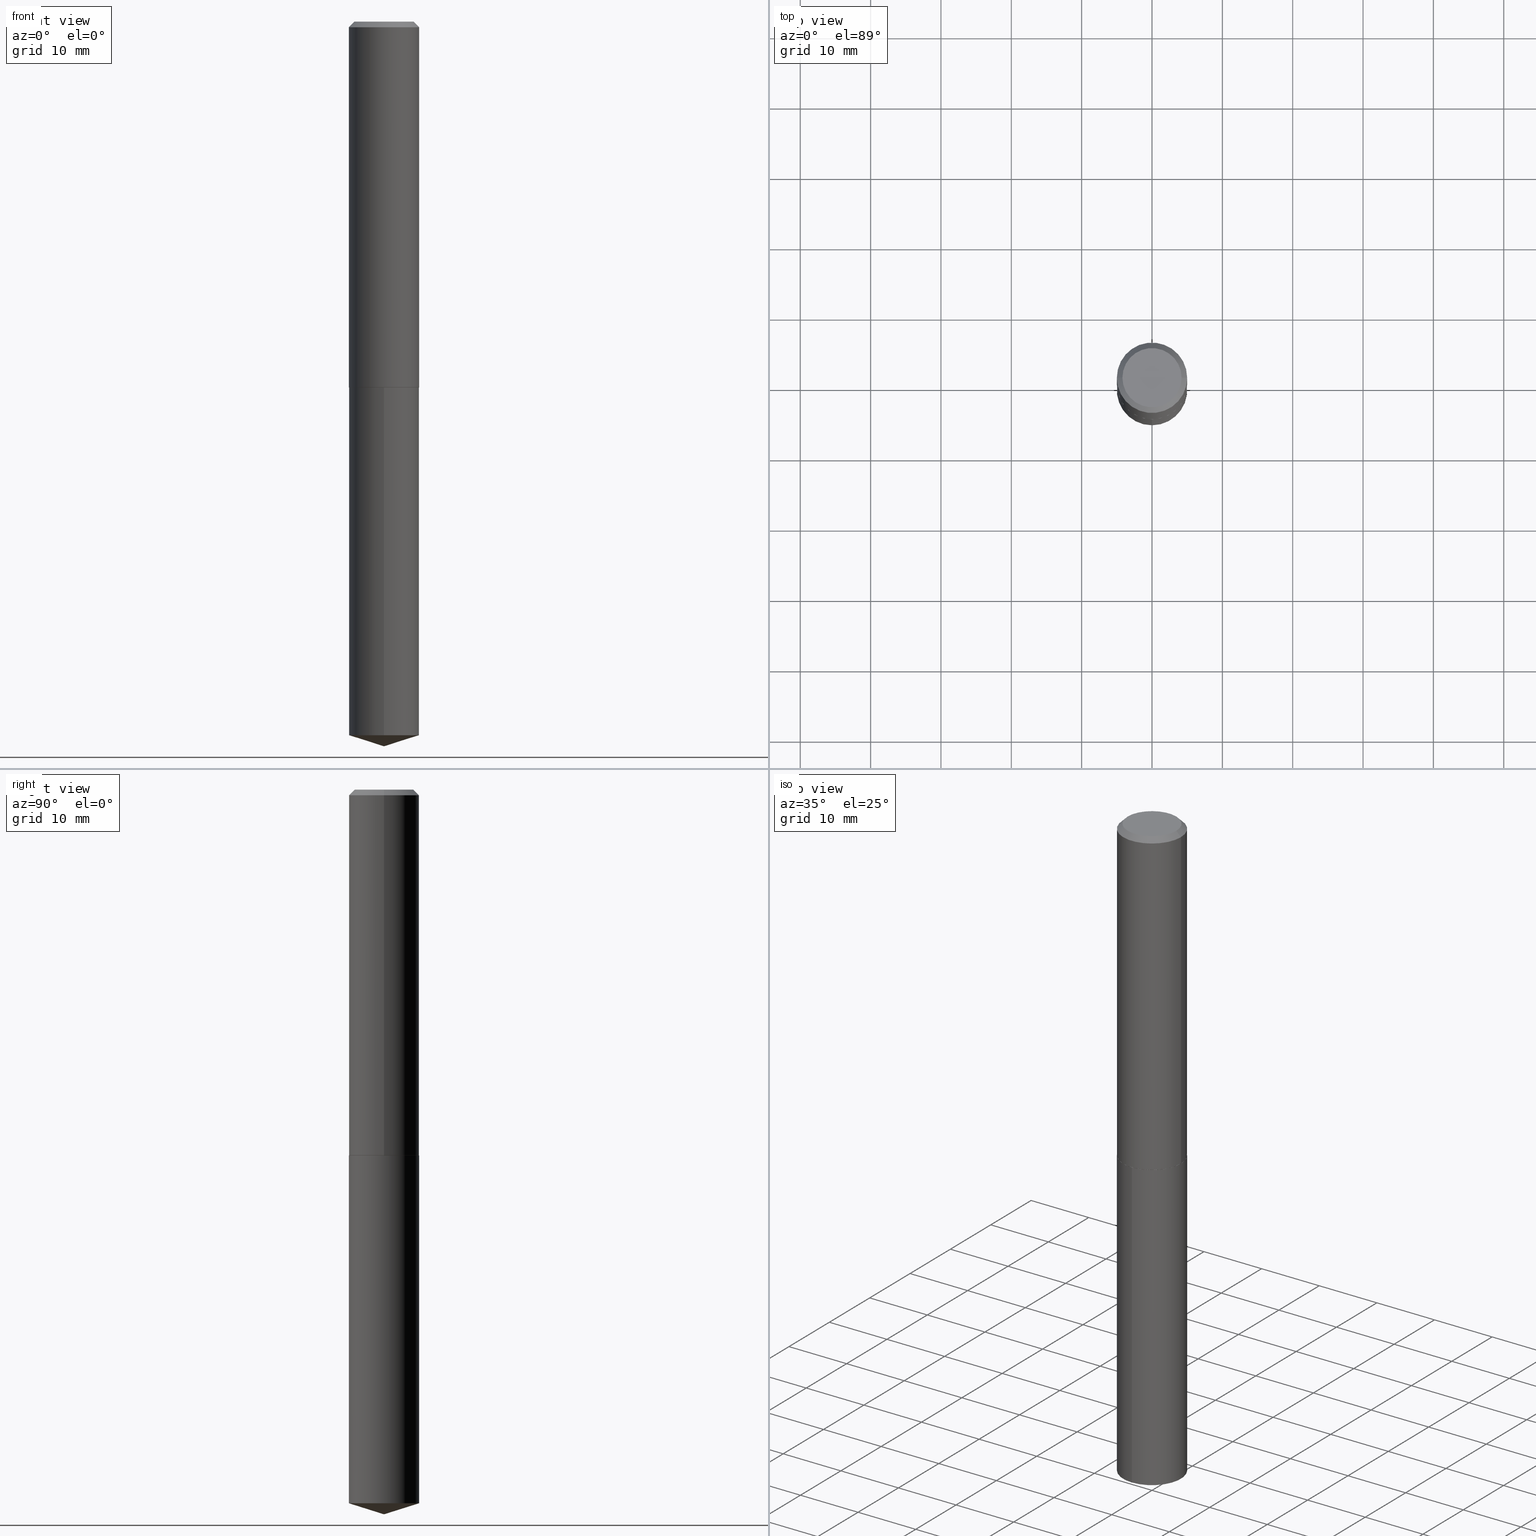
[diagram: canonical four-view strip — front | top / right | iso, engineering-drawing reading convention]
A machine part, canonical four-view strip (front | top / right | iso — engineering-drawing reading convention). The complete STEP part file that produces these views, byte-faithful:
ISO-10303-21;
HEADER;
FILE_DESCRIPTION (( 'STEP AP203' ),
    '1' );
FILE_NAME ('64174.STEP',
    '2024-04-23T10:24:49',
    ( '' ),
    ( '' ),
    'SwSTEP 2.0',
    'SolidWorks 2023',
    '' );
FILE_SCHEMA (( 'CONFIG_CONTROL_DESIGN' ));
ENDSEC;

DATA;
#1 = CARTESIAN_POINT ( 'NONE',  ( 5.006363740022211680E-29, -7.147760596879688202E-15, -2.047200000000000131 ) ) ;
#2 = EDGE_CURVE ( 'NONE', #63, #58, #126, .T. ) ;
#3 = DIRECTION ( 'NONE',  ( 2.445489491733734840E-29, -3.491451715960204306E-15, -1.000000000000000000 ) ) ;
#4 = CONICAL_SURFACE ( 'NONE', #280, 0.1968500000000000250, 0.7853981633974450594 ) ;
#5 = APPROVAL_PERSON_ORGANIZATION ( #177, #41, #297 ) ;
#6 = CARTESIAN_POINT ( 'NONE',  ( 0.1968500000000000250, -1.459597822700175121E-15, -0.03125000000000020123 ) ) ;
#7 = ADVANCED_FACE ( 'NONE', ( #334 ), #351, .T. ) ;
#8 = FACE_OUTER_BOUND ( 'NONE', #365, .T. ) ;
#9 = DIRECTION ( 'NONE',  ( -2.438088387897960049E-29, 3.491481338843145188E-15, 1.000000000000000000 ) ) ;
#10 = AXIS2_PLACEMENT_3D ( 'NONE', #366, #304, #153 ) ;
#11 = LINE ( 'NONE', #346, #59 ) ;
#12 = CARTESIAN_POINT ( 'NONE',  ( 5.006363740022211680E-29, -7.147760596879688202E-15, -2.047200000000000131 ) ) ;
#13 = EDGE_CURVE ( 'NONE', #170, #203, #110, .T. ) ;
#14 = CARTESIAN_POINT ( 'NONE',  ( 1.398703375343854818E-15, 0.1968499999999861194, -3.993033433409173494 ) ) ;
#15 = CLOSED_SHELL ( 'NONE', ( #360, #249, #7, #269, #271, #168, #46, #102 ) ) ;
#16 = AXIS2_PLACEMENT_3D ( 'NONE', #74, #131, #150 ) ;
#17 = DIRECTION ( 'NONE',  ( -2.445489491733734560E-29, 3.491451715960204700E-15, 1.000000000000000000 ) ) ;
#18 = EDGE_LOOP ( 'NONE', ( #350, #264 ) ) ;
#19 = PERSON_AND_ORGANIZATION ( #34, #24 ) ;
#20 = CC_DESIGN_PERSON_AND_ORGANIZATION_ASSIGNMENT ( #306, #211, ( #210 ) ) ;
#21 = DIRECTION ( 'NONE',  ( -2.445468806185136597E-29, 3.491481338843145583E-15, 1.000000000000000000 ) ) ;
#22 = EDGE_LOOP ( 'NONE', ( #386, #359, #164, #292 ) ) ;
#23 = AXIS2_PLACEMENT_3D ( 'NONE', #48, #245, #314 ) ;
#24 = ORGANIZATION ( 'UNSPECIFIED', 'UNSPECIFIED', '' ) ;
#25 = ORIENTED_EDGE ( 'NONE', *, *, #184, .F. ) ;
#26 = ORIENTED_EDGE ( 'NONE', *, *, #378, .F. ) ;
#27 = EDGE_CURVE ( 'NONE', #227, #367, #244, .T. ) ;
#28 = DATE_TIME_ROLE ( 'creation_date' ) ;
#29 = EDGE_LOOP ( 'NONE', ( #33, #288, #384, #261 ) ) ;
#30 = CIRCLE ( 'NONE', #379, 0.1968500000000002470 ) ;
#31 = DIRECTION ( 'NONE',  ( -6.659769872151633666E-15, -0.9537169507482269326, 0.3007057995042729526 ) ) ;
#32 = APPROVAL_DATE_TIME ( #69, #41 ) ;
#33 = ORIENTED_EDGE ( 'NONE', *, *, #339, .F. ) ;
#34 = PERSON ( 'UNSPECIFIED', 'UNSPECIFIED', 'UNSPECIFIED', ('UNSPECIFIED'), ('UNSPECIFIED'), ('UNSPECIFIED') ) ;
#35 = EDGE_CURVE ( 'NONE', #203, #319, #266, .T. ) ;
#36 = DIRECTION ( 'NONE',  ( 2.438088387897960049E-29, -3.491481338843145188E-15, -1.000000000000000000 ) ) ;
#37 = DATE_AND_TIME ( #152, #174 ) ;
#38 = CARTESIAN_POINT ( 'NONE',  ( 9.916619743019288278E-29, -1.415830714132214037E-14, -4.055100000000000371 ) ) ;
#39 = LOCAL_TIME ( 6, 24, 48.00000000000000000, #125 ) ;
#40 = LINE ( 'NONE', #157, #52 ) ;
#41 = APPROVAL ( #204, 'UNSPECIFIED' ) ;
#42 = CARTESIAN_POINT ( 'NONE',  ( 1.398703375343807091E-15, 0.1968499999999928640, -2.047200000000000575 ) ) ;
#43 = LINE ( 'NONE', #109, #154 ) ;
#44 = AXIS2_PLACEMENT_3D ( 'NONE', #247, #312, #195 ) ;
#45 = CC_DESIGN_APPROVAL ( #41, ( #216 ) ) ;
#46 = ADVANCED_FACE ( 'NONE', ( #237 ), #4, .T. ) ;
#47 = DIRECTION ( 'NONE',  ( -2.445489491733734560E-29, 3.491451715960204700E-15, 1.000000000000000000 ) ) ;
#48 = CARTESIAN_POINT ( 'NONE',  ( 0.000000000000000000, 0.000000000000000000, 0.000000000000000000 ) ) ;
#49 = PRODUCT_DEFINITION ( 'UNKNOWN', '', #216, #356 ) ;
#50 = ORIENTED_EDGE ( 'NONE', *, *, #108, .F. ) ;
#51 = EDGE_CURVE ( 'NONE', #58, #172, #316, .T. ) ;
#52 = VECTOR ( 'NONE', #380, 39.37007874015748854 ) ;
#53 = ORIENTED_EDGE ( 'NONE', *, *, #308, .F. ) ;
#54 = ADVANCED_FACE ( 'NONE', ( #98 ), #272, .F. ) ;
#55 = CARTESIAN_POINT ( 'NONE',  ( 7.642090019328601786E-31, -1.091087918388490144E-16, -0.03125000000000020123 ) ) ;
#56 = ORIENTED_EDGE ( 'NONE', *, *, #2, .F. ) ;
#57 = DIRECTION ( 'NONE',  ( 0.000000000000000000, 0.000000000000000000, 1.000000000000000000 ) ) ;
#58 = VERTEX_POINT ( 'NONE', #205 ) ;
#59 = VECTOR ( 'NONE', #318, 39.37007874015748143 ) ;
#60 =( NAMED_UNIT ( * ) SI_UNIT ( $, .STERADIAN. ) SOLID_ANGLE_UNIT ( ) );
#61 = APPROVAL_PERSON_ORGANIZATION ( #95, #341, #185 ) ;
#62 = EDGE_CURVE ( 'NONE', #300, #319, #335, .T. ) ;
#63 = VERTEX_POINT ( 'NONE', #100 ) ;
#64 = COORDINATED_UNIVERSAL_TIME_OFFSET ( 5, 0, .BEHIND. ) ;
#65 = ORIENTED_EDGE ( 'NONE', *, *, #27, .F. ) ;
#66 = PERSON_AND_ORGANIZATION ( #34, #24 ) ;
#67 = DIRECTION ( 'NONE',  ( 2.445468806185136597E-29, -3.491481338843145583E-15, -1.000000000000000000 ) ) ;
#68 = EDGE_CURVE ( 'NONE', #71, #362, #368, .T. ) ;
#69 = DATE_AND_TIME ( #303, #221 ) ;
#70 = AXIS2_PLACEMENT_3D ( 'NONE', #103, #107, #344 ) ;
#71 = VERTEX_POINT ( 'NONE', #186 ) ;
#72 = AXIS2_PLACEMENT_3D ( 'NONE', #286, #17, #324 ) ;
#73 = DIRECTION ( 'NONE',  ( -2.445468806185136597E-29, 3.491481338843145583E-15, 1.000000000000000000 ) ) ;
#74 = CARTESIAN_POINT ( 'NONE',  ( 5.005141005619118879E-29, -7.146014856210265909E-15, -2.046699999999999964 ) ) ;
#75 = DIRECTION ( 'NONE',  ( -2.445489491733734560E-29, 3.491451715960204700E-15, 1.000000000000000000 ) ) ;
#76 = AXIS2_PLACEMENT_3D ( 'NONE', #248, #9, #217 ) ;
#77 = AXIS2_PLACEMENT_3D ( 'NONE', #222, #322, #141 ) ;
#78 = DIRECTION ( 'NONE',  ( -6.982962677686266711E-15, -1.000000000000000000, 3.500519750498693388E-15 ) ) ;
#79 = FACE_OUTER_BOUND ( 'NONE', #213, .T. ) ;
#80 = CARTESIAN_POINT ( 'NONE',  ( -1.374596203102491516E-15, -0.1968500000000071581, -2.047199999999999243 ) ) ;
#81 = LOCAL_TIME ( 6, 24, 48.00000000000000000, #265 ) ;
#82 = DIRECTION ( 'NONE',  ( 6.776566513254258926E-15, 0.9537169507482290420, 0.3007057995042663467 ) ) ;
#83 = ADVANCED_BREP_SHAPE_REPRESENTATION ( '64174', ( #225, #114, #252 ), #389 ) ;
#84 = DIRECTION ( 'NONE',  ( -2.445489491733734560E-29, 3.491451715960204700E-15, 1.000000000000000000 ) ) ;
#85 = ORIENTED_EDGE ( 'NONE', *, *, #284, .F. ) ;
#86 = AXIS2_PLACEMENT_3D ( 'NONE', #257, #231, #352 ) ;
#87 = APPROVAL_ROLE ( '' ) ;
#88 = ORIENTED_EDGE ( 'NONE', *, *, #51, .T. ) ;
#89 = ORIENTED_EDGE ( 'NONE', *, *, #313, .F. ) ;
#90 = PRODUCT_DEFINITION_SHAPE ( 'NONE', 'NONE',  #49 ) ;
#91 = CARTESIAN_POINT ( 'NONE',  ( 7.642090019328601786E-31, -1.091087918388490144E-16, -0.03125000000000020123 ) ) ;
#92 = CONICAL_SURFACE ( 'NONE', #44, 124.8659371009154597, 1.265363707695892570 ) ;
#93 = CC_DESIGN_SECURITY_CLASSIFICATION ( #210, ( #216 ) ) ;
#94 = ORIENTED_EDGE ( 'NONE', *, *, #123, .F. ) ;
#95 = PERSON_AND_ORGANIZATION ( #34, #24 ) ;
#96 = ORIENTED_EDGE ( 'NONE', *, *, #2, .T. ) ;
#97 = PERSON_AND_ORGANIZATION_ROLE ( 'design_supplier' ) ;
#98 = FACE_OUTER_BOUND ( 'NONE', #18, .T. ) ;
#99 = VECTOR ( 'NONE', #31, 39.37007874015748854 ) ;
#100 = CARTESIAN_POINT ( 'NONE',  ( 9.916704437929467757E-29, -1.415818585339022734E-14, -4.055100000000000371 ) ) ;
#101 = CARTESIAN_POINT ( 'NONE',  ( 7.642090019328601786E-31, -1.091087918388490144E-16, -0.03125000000000020123 ) ) ;
#102 = ADVANCED_FACE ( 'NONE', ( #305 ), #243, .F. ) ;
#103 = CARTESIAN_POINT ( 'NONE',  ( 5.005141005619118879E-29, -7.146014856210265909E-15, -2.046699999999999964 ) ) ;
#104 = PLANE ( 'NONE',  #76 ) ;
#105 = CIRCLE ( 'NONE', #301, 0.1968500000000000250 ) ;
#106 = DIRECTION ( 'NONE',  ( 1.000000000000000000, -6.982962677686267499E-15, 0.000000000000000000 ) ) ;
#107 = DIRECTION ( 'NONE',  ( -2.445468806185136597E-29, 3.491481338843145583E-15, 1.000000000000000000 ) ) ;
#108 = EDGE_CURVE ( 'NONE', #203, #170, #30, .T. ) ;
#109 = CARTESIAN_POINT ( 'NONE',  ( 9.916705180603856104E-29, -1.415818585339022734E-14, -4.055100000000000371 ) ) ;
#110 = CIRCLE ( 'NONE', #16, 0.1968500000000002470 ) ;
#111 = CIRCLE ( 'NONE', #130, 0.1968500000000000250 ) ;
#112 = DIRECTION ( 'NONE',  ( -6.982962677686265133E-15, -1.000000000000000000, 4.163344669033674845E-15 ) ) ;
#113 = CC_DESIGN_PERSON_AND_ORGANIZATION_ASSIGNMENT ( #166, #260, ( #383 ) ) ;
#114 = MANIFOLD_SOLID_BREP ( 'Body-Move/Copy2[2]', #15 ) ;
#115 = APPROVAL_STATUS ( 'not_yet_approved' ) ;
#116 = AXIS2_PLACEMENT_3D ( 'NONE', #307, #36, #371 ) ;
#117 = ORIENTED_EDGE ( 'NONE', *, *, #238, .F. ) ;
#118 = EDGE_CURVE ( 'NONE', #71, #170, #251, .T. ) ;
#119 = CARTESIAN_POINT ( 'NONE',  ( -1.178467787315320954E-46, 1.682539673960460375E-32, 4.818985154644838991E-18 ) ) ;
#120 = EDGE_LOOP ( 'NONE', ( #65, #258, #230, #224 ) ) ;
#121 = COORDINATED_UNIVERSAL_TIME_OFFSET ( 5, 0, .BEHIND. ) ;
#122 = VECTOR ( 'NONE', #250, 39.37007874015748143 ) ;
#123 = EDGE_CURVE ( 'NONE', #170, #367, #11, .T. ) ;
#124 = ORIENTED_EDGE ( 'NONE', *, *, #68, .T. ) ;
#125 = COORDINATED_UNIVERSAL_TIME_OFFSET ( 5, 0, .BEHIND. ) ;
#126 = LINE ( 'NONE', #38, #99 ) ;
#127 = DIRECTION ( 'NONE',  ( -0.7071067811865452413, 2.468850131082233000E-15, -0.7071067811865497932 ) ) ;
#128 = DIMENSIONAL_EXPONENTS ( 1.000000000000000000, 0.000000000000000000, 0.000000000000000000, 0.000000000000000000, 0.000000000000000000, 0.000000000000000000, 0.000000000000000000 ) ;
#129 = DIRECTION ( 'NONE',  ( -1.000000000000000000, 6.982962677686265922E-15, 0.000000000000000000 ) ) ;
#130 = AXIS2_PLACEMENT_3D ( 'NONE', #91, #21, #202 ) ;
#131 = DIRECTION ( 'NONE',  ( -2.445468806185136597E-29, 3.491481338843145583E-15, 1.000000000000000000 ) ) ;
#132 = CYLINDRICAL_SURFACE ( 'NONE', #330, 0.1968500000000000250 ) ;
#133 = CARTESIAN_POINT ( 'NONE',  ( 0.1968500000000002470, -8.520611059312810673E-15, -2.046699999999999964 ) ) ;
#134 = VECTOR ( 'NONE', #390, 39.37007874015748143 ) ;
#135 = CARTESIAN_POINT ( 'NONE',  ( 5.006363740022211680E-29, -7.147760596879688202E-15, -2.047200000000000131 ) ) ;
#136 = FACE_OUTER_BOUND ( 'NONE', #146, .T. ) ;
#137 = DIRECTION ( 'NONE',  ( 1.000000000000000000, -6.982962677686266711E-15, 4.876176775795935793E-29 ) ) ;
#138 = AXIS2_PLACEMENT_3D ( 'NONE', #1, #3, #208 ) ;
#139 = ORIENTED_EDGE ( 'NONE', *, *, #123, .T. ) ;
#140 = DIRECTION ( 'NONE',  ( 1.000000000000000000, -6.982962677686265922E-15, 0.000000000000000000 ) ) ;
#141 = DIRECTION ( 'NONE',  ( -1.000000000000000000, 6.982962677686265922E-15, 0.000000000000000000 ) ) ;
#142 = ORIENTED_EDGE ( 'NONE', *, *, #35, .T. ) ;
#143 = EDGE_LOOP ( 'NONE', ( #56, #323, #178 ) ) ;
#144 = ADVANCED_FACE ( 'NONE', ( #285 ), #240, .T. ) ;
#145 = SECURITY_CLASSIFICATION_LEVEL ( 'unclassified' ) ;
#146 = EDGE_LOOP ( 'NONE', ( #239, #325 ) ) ;
#147 = CC_DESIGN_DATE_AND_TIME_ASSIGNMENT ( #331, #28, ( #49 ) ) ;
#148 = AXIS2_PLACEMENT_3D ( 'NONE', #119, #175, #385 ) ;
#149 = APPLICATION_CONTEXT ( 'configuration controlled 3d designs of mechanical parts and assemblies' ) ;
#150 = DIRECTION ( 'NONE',  ( 1.000000000000000000, -6.982962677686269866E-15, 0.000000000000000000 ) ) ;
#151 = ORIENTED_EDGE ( 'NONE', *, *, #348, .F. ) ;
#152 = CALENDAR_DATE ( 2024, 23, 4 ) ;
#153 = DIRECTION ( 'NONE',  ( -6.982962677686265133E-15, -1.000000000000000000, 2.775563112689116301E-15 ) ) ;
#154 = VECTOR ( 'NONE', #82, 39.37007874015748143 ) ;
#155 = CARTESIAN_POINT ( 'NONE',  ( 5.005141005619118879E-29, -7.146014856210265909E-15, -2.046699999999999964 ) ) ;
#156 = ADVANCED_FACE ( 'NONE', ( #158 ), #132, .T. ) ;
#157 = CARTESIAN_POINT ( 'NONE',  ( -0.1968500000000002470, -5.747311480866507333E-15, -2.046699999999999964 ) ) ;
#158 = FACE_OUTER_BOUND ( 'NONE', #22, .T. ) ;
#159 = CC_DESIGN_PERSON_AND_ORGANIZATION_ASSIGNMENT ( #242, #236, ( #216 ) ) ;
#160 = DIRECTION ( 'NONE',  ( 0.7071067811865474617, -2.468850131082256666E-15, 0.7071067811865474617 ) ) ;
#161 = FACE_OUTER_BOUND ( 'NONE', #143, .T. ) ;
#162 = CARTESIAN_POINT ( 'NONE',  ( -1.374596203102491516E-15, -0.1968500000000071581, -2.047199999999999243 ) ) ;
#163 = CARTESIAN_POINT ( 'NONE',  ( 0.1968500000000000250, -1.483704994941390709E-15, -0.03125000000000020123 ) ) ;
#164 = ORIENTED_EDGE ( 'NONE', *, *, #284, .T. ) ;
#165 = VECTOR ( 'NONE', #192, 39.37007874015748143 ) ;
#166 = PERSON_AND_ORGANIZATION ( #34, #24 ) ;
#167 = ORIENTED_EDGE ( 'NONE', *, *, #13, .F. ) ;
#168 = ADVANCED_FACE ( 'NONE', ( #79 ), #317, .T. ) ;
#169 = FACE_OUTER_BOUND ( 'NONE', #29, .T. ) ;
#170 = VERTEX_POINT ( 'NONE', #376 ) ;
#171 = APPLICATION_PROTOCOL_DEFINITION ( 'international standard', 'config_control_design', 1994, #354 ) ;
#172 = VERTEX_POINT ( 'NONE', #14 ) ;
#173 = VECTOR ( 'NONE', #270, 39.37007874015748143 ) ;
#174 = LOCAL_TIME ( 6, 24, 48.00000000000000000, #64 ) ;
#175 = DIRECTION ( 'NONE',  ( -2.445468806185136597E-29, 3.491481338843145583E-15, 1.000000000000000000 ) ) ;
#176 = EDGE_LOOP ( 'NONE', ( #88, #329, #117, #85 ) ) ;
#177 = PERSON_AND_ORGANIZATION ( #34, #24 ) ;
#178 = ORIENTED_EDGE ( 'NONE', *, *, #51, .F. ) ;
#179 = PERSON_AND_ORGANIZATION_ROLE ( 'creator' ) ;
#180 = EDGE_LOOP ( 'NONE', ( #124, #340, #167, #277 ) ) ;
#181 = AXIS2_PLACEMENT_3D ( 'NONE', #207, #372, #183 ) ;
#182 = DATE_TIME_ROLE ( 'classification_date' ) ;
#183 = DIRECTION ( 'NONE',  ( 1.000000000000000000, -6.982962677686269866E-15, 0.000000000000000000 ) ) ;
#184 = EDGE_CURVE ( 'NONE', #63, #172, #43, .T. ) ;
#185 = APPROVAL_ROLE ( '' ) ;
#186 = CARTESIAN_POINT ( 'NONE',  ( 0.1963500000000003576, -8.518865318643388381E-15, -2.047200000000000131 ) ) ;
#187 = DIRECTION ( 'NONE',  ( 1.000000000000000000, -6.982962677686267499E-15, 0.000000000000000000 ) ) ;
#188 = CIRCLE ( 'NONE', #246, 0.1963500000000003576 ) ;
#189 = DIRECTION ( 'NONE',  ( -2.445468806185136597E-29, 3.491481338843145583E-15, 1.000000000000000000 ) ) ;
#190 = LINE ( 'NONE', #42, #122 ) ;
#191 = FACE_OUTER_BOUND ( 'NONE', #212, .T. ) ;
#192 = DIRECTION ( 'NONE',  ( -2.445489491733734560E-29, 3.491451715960204306E-15, 1.000000000000000000 ) ) ;
#193 = AXIS2_PLACEMENT_3D ( 'NONE', #338, #73, #187 ) ;
#194 = ADVANCED_FACE ( 'NONE', ( #161 ), #92, .T. ) ;
#195 = DIRECTION ( 'NONE',  ( -6.982962677686266711E-15, -1.000000000000000000, 3.500519750498693388E-15 ) ) ;
#196 =( CONVERSION_BASED_UNIT ( 'INCH', #255 ) LENGTH_UNIT ( ) NAMED_UNIT ( #128 ) );
#197 = PRODUCT_RELATED_PRODUCT_CATEGORY ( 'detail', '', ( #383 ) ) ;
#198 = ORIENTED_EDGE ( 'NONE', *, *, #262, .T. ) ;
#199 = CARTESIAN_POINT ( 'NONE',  ( -0.1963500000000003576, -5.749960708040618534E-15, -2.047200000000000131 ) ) ;
#200 = DIRECTION ( 'NONE',  ( -2.445468806185136597E-29, 3.491481338843145583E-15, 1.000000000000000000 ) ) ;
#201 = UNCERTAINTY_MEASURE_WITH_UNIT (LENGTH_MEASURE( 1.000000000000000082E-05 ), #196, 'distance_accuracy_value', 'NONE');
#202 = DIRECTION ( 'NONE',  ( 1.000000000000000000, -6.982962677686265922E-15, 0.000000000000000000 ) ) ;
#203 = VERTEX_POINT ( 'NONE', #283 ) ;
#204 = APPROVAL_STATUS ( 'not_yet_approved' ) ;
#205 = CARTESIAN_POINT ( 'NONE',  ( -1.374596203102444184E-15, -0.1968500000000139860, -3.993033433409172606 ) ) ;
#206 = CALENDAR_DATE ( 2024, 23, 4 ) ;
#207 = CARTESIAN_POINT ( 'NONE',  ( 5.005141005619118879E-29, -7.146014856210265909E-15, -2.046699999999999964 ) ) ;
#208 = DIRECTION ( 'NONE',  ( 6.982962677686265922E-15, 1.000000000000000000, -3.491451715960204306E-15 ) ) ;
#209 = VECTOR ( 'NONE', #160, 39.37007874015748854 ) ;
#210 = SECURITY_CLASSIFICATION ( '', '', #145 ) ;
#211 = PERSON_AND_ORGANIZATION_ROLE ( 'classification_officer' ) ;
#212 = EDGE_LOOP ( 'NONE', ( #53, #198, #256, #50 ) ) ;
#213 = EDGE_LOOP ( 'NONE', ( #388, #355, #139, #26 ) ) ;
#214 = CARTESIAN_POINT ( 'NONE',  ( 0.1655999999999999972, -1.297848145565570390E-15, 4.818985154653420164E-18 ) ) ;
#215 = CIRCLE ( 'NONE', #267, 0.1968500000000000250 ) ;
#216 = PRODUCT_DEFINITION_FORMATION_WITH_SPECIFIED_SOURCE ( 'ANY', '', #383, .NOT_KNOWN. ) ;
#217 = DIRECTION ( 'NONE',  ( 1.000000000000000000, -6.982962677686265922E-15, 4.876176775795935793E-29 ) ) ;
#218 = DIRECTION ( 'NONE',  ( -2.445468806185136597E-29, 3.491481338843145583E-15, 1.000000000000000000 ) ) ;
#219 = LINE ( 'NONE', #80, #165 ) ;
#220 = DIRECTION ( 'NONE',  ( -2.445489491733734560E-29, 3.491451715960204700E-15, 1.000000000000000000 ) ) ;
#221 = LOCAL_TIME ( 6, 24, 48.00000000000000000, #333 ) ;
#222 = CARTESIAN_POINT ( 'NONE',  ( 7.642090019328601786E-31, -1.091087918388490144E-16, -0.03125000000000020123 ) ) ;
#223 = DIRECTION ( 'NONE',  ( 1.000000000000000000, 0.000000000000000000, 0.000000000000000000 ) ) ;
#224 = ORIENTED_EDGE ( 'NONE', *, *, #378, .T. ) ;
#225 = MANIFOLD_SOLID_BREP ( 'Body-Move/Copy2[1]', #275 ) ;
#226 = CYLINDRICAL_SURFACE ( 'NONE', #72, 0.1968500000000000250 ) ;
#227 = VERTEX_POINT ( 'NONE', #214 ) ;
#228 = AXIS2_PLACEMENT_3D ( 'NONE', #345, #220, #78 ) ;
#229 = CARTESIAN_POINT ( 'NONE',  ( -0.1968500000000000250, -2.228858448680798929E-15, -0.03125000000000020123 ) ) ;
#230 = ORIENTED_EDGE ( 'NONE', *, *, #62, .T. ) ;
#231 = DIRECTION ( 'NONE',  ( -2.445489491733734560E-29, 3.491451715960204700E-15, 1.000000000000000000 ) ) ;
#232 = DATE_AND_TIME ( #364, #81 ) ;
#233 = AXIS2_PLACEMENT_3D ( 'NONE', #377, #347, #137 ) ;
#234 = CALENDAR_DATE ( 2024, 23, 4 ) ;
#235 = ORIENTED_EDGE ( 'NONE', *, *, #13, .T. ) ;
#236 = PERSON_AND_ORGANIZATION_ROLE ( 'creator' ) ;
#237 = FACE_OUTER_BOUND ( 'NONE', #120, .T. ) ;
#238 = EDGE_CURVE ( 'NONE', #294, #296, #295, .T. ) ;
#239 = ORIENTED_EDGE ( 'NONE', *, *, #68, .F. ) ;
#240 = CONICAL_SURFACE ( 'NONE', #228, 124.8659371009154597, 1.265363707695892570 ) ;
#241 = APPROVAL_PERSON_ORGANIZATION ( #19, #311, #87 ) ;
#242 = PERSON_AND_ORGANIZATION ( #34, #24 ) ;
#243 = PLANE ( 'NONE',  #116 ) ;
#244 = LINE ( 'NONE', #6, #134 ) ;
#245 = DIRECTION ( 'NONE',  ( -2.445468806185136597E-29, 3.491481338843145583E-15, 1.000000000000000000 ) ) ;
#246 = AXIS2_PLACEMENT_3D ( 'NONE', #12, #189, #106 ) ;
#247 = CARTESIAN_POINT ( 'NONE',  ( -8.636245175731045024E-28, 1.233004824774550374E-13, 35.31497874015747840 ) ) ;
#248 = CARTESIAN_POINT ( 'NONE',  ( 5.006363740022211680E-29, -7.147760596879688202E-15, -2.047200000000000131 ) ) ;
#249 = ADVANCED_FACE ( 'NONE', ( #8 ), #373, .T. ) ;
#250 = DIRECTION ( 'NONE',  ( -2.445489491733734560E-29, 3.491451715960204306E-15, 1.000000000000000000 ) ) ;
#251 = LINE ( 'NONE', #133, #209 ) ;
#252 = AXIS2_PLACEMENT_3D ( 'NONE', #327, #57, #223 ) ;
#253 = CARTESIAN_POINT ( 'NONE',  ( 5.006363740022211680E-29, -7.147760596879688202E-15, -2.047200000000000131 ) ) ;
#254 = ORIENTED_EDGE ( 'NONE', *, *, #339, .T. ) ;
#255 = LENGTH_MEASURE_WITH_UNIT ( LENGTH_MEASURE( 0.02539999999999999897 ), #328 );
#256 = ORIENTED_EDGE ( 'NONE', *, *, #118, .T. ) ;
#257 = CARTESIAN_POINT ( 'NONE',  ( 9.764878954088519076E-29, -1.394154407692888067E-14, -3.993033433409173050 ) ) ;
#258 = ORIENTED_EDGE ( 'NONE', *, *, #357, .F. ) ;
#259 = CC_DESIGN_APPROVAL ( #341, ( #210 ) ) ;
#260 = PERSON_AND_ORGANIZATION_ROLE ( 'design_owner' ) ;
#261 = ORIENTED_EDGE ( 'NONE', *, *, #62, .F. ) ;
#262 = EDGE_CURVE ( 'NONE', #362, #71, #188, .T. ) ;
#263 = SHAPE_DEFINITION_REPRESENTATION ( #90, #83 ) ;
#264 = ORIENTED_EDGE ( 'NONE', *, *, #326, .T. ) ;
#265 = COORDINATED_UNIVERSAL_TIME_OFFSET ( 5, 0, .BEHIND. ) ;
#266 = LINE ( 'NONE', #274, #173 ) ;
#267 = AXIS2_PLACEMENT_3D ( 'NONE', #55, #358, #140 ) ;
#268 = CONICAL_SURFACE ( 'NONE', #77, 0.1968500000000000250, 0.7853981633974450594 ) ;
#269 = ADVANCED_FACE ( 'NONE', ( #136 ), #104, .F. ) ;
#270 = DIRECTION ( 'NONE',  ( -2.445468806185136877E-29, 3.491481338843145188E-15, 1.000000000000000000 ) ) ;
#271 = ADVANCED_FACE ( 'NONE', ( #191 ), #343, .T. ) ;
#272 = PLANE ( 'NONE',  #138 ) ;
#273 = APPROVAL_DATE_TIME ( #37, #311 ) ;
#274 = CARTESIAN_POINT ( 'NONE',  ( -0.1968500000000001082, 1.398703375343757985E-15, -9.682923725166787881E-30 ) ) ;
#275 = CLOSED_SHELL ( 'NONE', ( #369, #194, #144, #156, #54 ) ) ;
#276 = LOCAL_TIME ( 6, 24, 48.00000000000000000, #121 ) ;
#277 = ORIENTED_EDGE ( 'NONE', *, *, #118, .F. ) ;
#278 = DIRECTION ( 'NONE',  ( 1.000000000000000000, -6.982962677686269866E-15, 0.000000000000000000 ) ) ;
#279 = DIRECTION ( 'NONE',  ( -6.982962677686265133E-15, -1.000000000000000000, 4.163344669033674845E-15 ) ) ;
#280 = AXIS2_PLACEMENT_3D ( 'NONE', #101, #67, #129 ) ;
#281 = EDGE_CURVE ( 'NONE', #172, #296, #190, .T. ) ;
#282 = CARTESIAN_POINT ( 'NONE',  ( 5.006363740022211680E-29, -7.147760596879688202E-15, -2.047200000000000131 ) ) ;
#283 = CARTESIAN_POINT ( 'NONE',  ( -0.1968500000000002470, -5.747311480866507333E-15, -2.046699999999999964 ) ) ;
#284 = EDGE_CURVE ( 'NONE', #58, #294, #219, .T. ) ;
#285 = FACE_OUTER_BOUND ( 'NONE', #290, .T. ) ;
#286 = CARTESIAN_POINT ( 'NONE',  ( 5.006363740022211680E-29, -7.147760596879688202E-15, -2.047200000000000131 ) ) ;
#287 = CC_DESIGN_APPROVAL ( #311, ( #49 ) ) ;
#288 = ORIENTED_EDGE ( 'NONE', *, *, #27, .T. ) ;
#289 = APPLICATION_PROTOCOL_DEFINITION ( 'international standard', 'config_control_design', 1994, #149 ) ;
#290 = EDGE_LOOP ( 'NONE', ( #25, #96, #151 ) ) ;
#291 = CARTESIAN_POINT ( 'NONE',  ( -1.178467787315320954E-46, 1.682539673960460375E-32, 4.818985154644838991E-18 ) ) ;
#292 = ORIENTED_EDGE ( 'NONE', *, *, #326, .F. ) ;
#293 = MECHANICAL_CONTEXT ( 'NONE', #354, 'mechanical' ) ;
#294 = VERTEX_POINT ( 'NONE', #162 ) ;
#295 = CIRCLE ( 'NONE', #363, 0.1968500000000000250 ) ;
#296 = VERTEX_POINT ( 'NONE', #342 ) ;
#297 = APPROVAL_ROLE ( '' ) ;
#298 = ORIENTED_EDGE ( 'NONE', *, *, #357, .T. ) ;
#299 = APPROVAL_DATE_TIME ( #337, #341 ) ;
#300 = VERTEX_POINT ( 'NONE', #310 ) ;
#301 = AXIS2_PLACEMENT_3D ( 'NONE', #253, #84, #112 ) ;
#302 = AXIS2_PLACEMENT_3D ( 'NONE', #291, #200, #349 ) ;
#303 = CALENDAR_DATE ( 2024, 23, 4 ) ;
#304 = DIRECTION ( 'NONE',  ( -2.445489491733734560E-29, 3.491451715960204700E-15, 1.000000000000000000 ) ) ;
#305 = FACE_OUTER_BOUND ( 'NONE', #353, .T. ) ;
#306 = PERSON_AND_ORGANIZATION ( #34, #24 ) ;
#307 = CARTESIAN_POINT ( 'NONE',  ( -5.892338936576604772E-47, 8.412698369802301877E-33, 2.409492577322419495E-18 ) ) ;
#308 = EDGE_CURVE ( 'NONE', #362, #203, #40, .T. ) ;
#309 = CIRCLE ( 'NONE', #302, 0.1655999999999999972 ) ;
#310 = CARTESIAN_POINT ( 'NONE',  ( -0.1655999999999999972, 1.210933015344269141E-15, 4.818985154636560574E-18 ) ) ;
#311 = APPROVAL ( #115, 'UNSPECIFIED' ) ;
#312 = DIRECTION ( 'NONE',  ( -2.445489491733734560E-29, 3.491451715960204700E-15, 1.000000000000000000 ) ) ;
#313 = EDGE_CURVE ( 'NONE', #367, #319, #215, .T. ) ;
#314 = DIRECTION ( 'NONE',  ( 1.000000000000000000, -6.982962677686266711E-15, 4.876176775795935793E-29 ) ) ;
#315 = CC_DESIGN_DATE_AND_TIME_ASSIGNMENT ( #232, #182, ( #210 ) ) ;
#316 = CIRCLE ( 'NONE', #10, 0.1968500000000000250 ) ;
#317 = CYLINDRICAL_SURFACE ( 'NONE', #23, 0.1968500000000001082 ) ;
#318 = DIRECTION ( 'NONE',  ( -2.445468806185136877E-29, 3.491481338843145188E-15, 1.000000000000000000 ) ) ;
#319 = VERTEX_POINT ( 'NONE', #229 ) ;
#320 = CC_DESIGN_PERSON_AND_ORGANIZATION_ASSIGNMENT ( #66, #179, ( #49 ) ) ;
#321 = CIRCLE ( 'NONE', #148, 0.1655999999999999972 ) ;
#322 = DIRECTION ( 'NONE',  ( 2.445468806185136597E-29, -3.491481338843145583E-15, -1.000000000000000000 ) ) ;
#323 = ORIENTED_EDGE ( 'NONE', *, *, #184, .T. ) ;
#324 = DIRECTION ( 'NONE',  ( -6.982962677686265133E-15, -1.000000000000000000, 4.163344669033674845E-15 ) ) ;
#325 = ORIENTED_EDGE ( 'NONE', *, *, #262, .F. ) ;
#326 = EDGE_CURVE ( 'NONE', #296, #294, #105, .T. ) ;
#327 = CARTESIAN_POINT ( 'NONE',  ( 0.000000000000000000, 0.000000000000000000, 0.000000000000000000 ) ) ;
#328 =( LENGTH_UNIT ( ) NAMED_UNIT ( * ) SI_UNIT ( $, .METRE. ) );
#329 = ORIENTED_EDGE ( 'NONE', *, *, #281, .T. ) ;
#330 = AXIS2_PLACEMENT_3D ( 'NONE', #282, #75, #279 ) ;
#331 = DATE_AND_TIME ( #234, #39 ) ;
#332 = CARTESIAN_POINT ( 'NONE',  ( -0.1968500000000000250, 1.265487411263692705E-15, -0.03125000000000020123 ) ) ;
#333 = COORDINATED_UNIVERSAL_TIME_OFFSET ( 5, 0, .BEHIND. ) ;
#334 = FACE_OUTER_BOUND ( 'NONE', #180, .T. ) ;
#335 = LINE ( 'NONE', #332, #336 ) ;
#336 = VECTOR ( 'NONE', #127, 39.37007874015748143 ) ;
#337 = DATE_AND_TIME ( #206, #276 ) ;
#338 = CARTESIAN_POINT ( 'NONE',  ( 5.006363740022211680E-29, -7.147760596879688202E-15, -2.047200000000000131 ) ) ;
#339 = EDGE_CURVE ( 'NONE', #227, #300, #321, .T. ) ;
#340 = ORIENTED_EDGE ( 'NONE', *, *, #308, .T. ) ;
#341 = APPROVAL ( #361, 'UNSPECIFIED' ) ;
#342 = CARTESIAN_POINT ( 'NONE',  ( 1.398703375343855015E-15, 0.1968499999999928640, -2.047200000000000575 ) ) ;
#343 = CONICAL_SURFACE ( 'NONE', #70, 0.1968500000000002470, 0.7853981633974482790 ) ;
#344 = DIRECTION ( 'NONE',  ( 1.000000000000000000, -6.982962677686269866E-15, 0.000000000000000000 ) ) ;
#345 = CARTESIAN_POINT ( 'NONE',  ( -8.636245175731045024E-28, 1.233004824774550374E-13, 35.31497874015747840 ) ) ;
#346 = CARTESIAN_POINT ( 'NONE',  ( 0.1968500000000001082, -1.374596203102542397E-15, 9.598753983154305062E-30 ) ) ;
#347 = DIRECTION ( 'NONE',  ( -2.445468806185136597E-29, 3.491481338843145583E-15, 1.000000000000000000 ) ) ;
#348 = EDGE_CURVE ( 'NONE', #172, #58, #374, .T. ) ;
#349 = DIRECTION ( 'NONE',  ( 1.000000000000000000, -6.982962677686266711E-15, 4.876363190812712291E-29 ) ) ;
#350 = ORIENTED_EDGE ( 'NONE', *, *, #238, .T. ) ;
#351 = CONICAL_SURFACE ( 'NONE', #181, 0.1968500000000002470, 0.7853981633974482790 ) ;
#352 = DIRECTION ( 'NONE',  ( -6.982962677686265133E-15, -1.000000000000000000, 2.775563112689116301E-15 ) ) ;
#353 = EDGE_LOOP ( 'NONE', ( #298, #254 ) ) ;
#354 = APPLICATION_CONTEXT ( 'configuration controlled 3d designs of mechanical parts and assemblies' ) ;
#355 = ORIENTED_EDGE ( 'NONE', *, *, #108, .T. ) ;
#356 = DESIGN_CONTEXT ( 'detailed design', #149, 'design' ) ;
#357 = EDGE_CURVE ( 'NONE', #300, #227, #309, .T. ) ;
#358 = DIRECTION ( 'NONE',  ( -2.445468806185136597E-29, 3.491481338843145583E-15, 1.000000000000000000 ) ) ;
#359 = ORIENTED_EDGE ( 'NONE', *, *, #348, .T. ) ;
#360 = ADVANCED_FACE ( 'NONE', ( #169 ), #268, .T. ) ;
#361 = APPROVAL_STATUS ( 'not_yet_approved' ) ;
#362 = VERTEX_POINT ( 'NONE', #199 ) ;
#363 = AXIS2_PLACEMENT_3D ( 'NONE', #135, #47, #375 ) ;
#364 = CALENDAR_DATE ( 2024, 23, 4 ) ;
#365 = EDGE_LOOP ( 'NONE', ( #235, #142, #89, #94 ) ) ;
#366 = CARTESIAN_POINT ( 'NONE',  ( 9.764878954088519076E-29, -1.394154407692888067E-14, -3.993033433409173050 ) ) ;
#367 = VERTEX_POINT ( 'NONE', #163 ) ;
#368 = CIRCLE ( 'NONE', #193, 0.1963500000000003576 ) ;
#369 = ADVANCED_FACE ( 'NONE', ( #382 ), #226, .T. ) ;
#370 = PERSON_AND_ORGANIZATION ( #34, #24 ) ;
#371 = DIRECTION ( 'NONE',  ( -1.000000000000000000, 6.982962677686265922E-15, -4.876176775795935793E-29 ) ) ;
#372 = DIRECTION ( 'NONE',  ( -2.445468806185136597E-29, 3.491481338843145583E-15, 1.000000000000000000 ) ) ;
#373 = CYLINDRICAL_SURFACE ( 'NONE', #233, 0.1968500000000001082 ) ;
#374 = CIRCLE ( 'NONE', #86, 0.1968500000000000250 ) ;
#375 = DIRECTION ( 'NONE',  ( -6.982962677686265133E-15, -1.000000000000000000, 4.163344669033674845E-15 ) ) ;
#376 = CARTESIAN_POINT ( 'NONE',  ( 0.1968500000000002470, -8.520611059312810673E-15, -2.046699999999999964 ) ) ;
#377 = CARTESIAN_POINT ( 'NONE',  ( 0.000000000000000000, 0.000000000000000000, 0.000000000000000000 ) ) ;
#378 = EDGE_CURVE ( 'NONE', #319, #367, #111, .T. ) ;
#379 = AXIS2_PLACEMENT_3D ( 'NONE', #155, #218, #278 ) ;
#380 = DIRECTION ( 'NONE',  ( -0.7071067811865474617, 7.493145998870352582E-15, 0.7071067811865474617 ) ) ;
#381 =( NAMED_UNIT ( * ) PLANE_ANGLE_UNIT ( ) SI_UNIT ( $, .RADIAN. ) );
#382 = FACE_OUTER_BOUND ( 'NONE', #176, .T. ) ;
#383 = PRODUCT ( '64174', '64174', '', ( #293 ) ) ;
#384 = ORIENTED_EDGE ( 'NONE', *, *, #313, .T. ) ;
#385 = DIRECTION ( 'NONE',  ( 1.000000000000000000, -6.982962677686266711E-15, 4.876363190812712291E-29 ) ) ;
#386 = ORIENTED_EDGE ( 'NONE', *, *, #281, .F. ) ;
#387 = CC_DESIGN_PERSON_AND_ORGANIZATION_ASSIGNMENT ( #370, #97, ( #216 ) ) ;
#388 = ORIENTED_EDGE ( 'NONE', *, *, #35, .F. ) ;
#389 =( GEOMETRIC_REPRESENTATION_CONTEXT ( 3 ) GLOBAL_UNCERTAINTY_ASSIGNED_CONTEXT ( ( #201 ) ) GLOBAL_UNIT_ASSIGNED_CONTEXT ( ( #196, #381, #60 ) ) REPRESENTATION_CONTEXT ( 'NONE', 'WORKASPACE' ) );
#390 = DIRECTION ( 'NONE',  ( 0.7071067811865452413, -7.319954787623248157E-15, -0.7071067811865497932 ) ) ;
ENDSEC;
END-ISO-10303-21;
